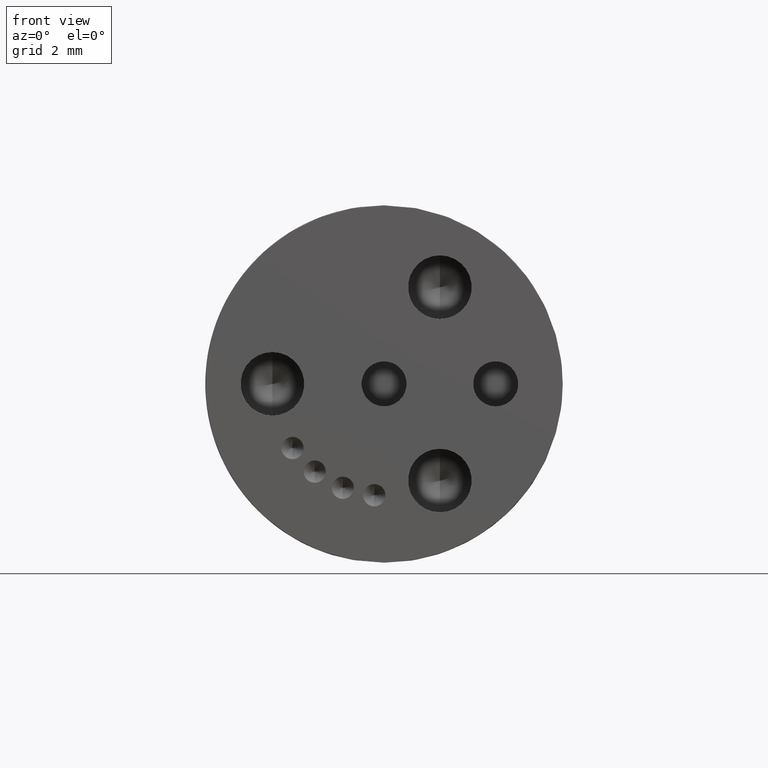
[diagram: clean part render]
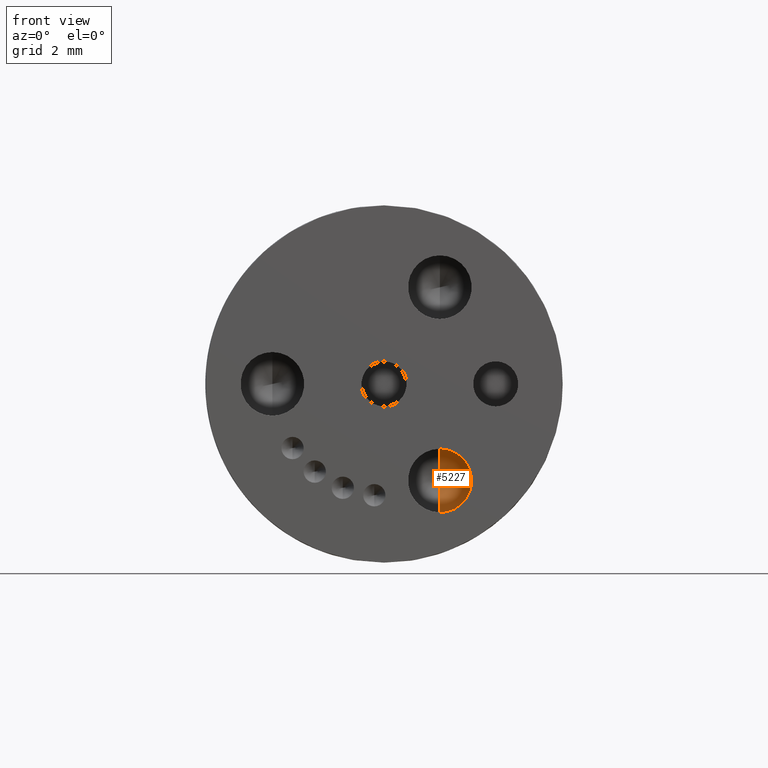
[diagram: same view with one face highlighted and labeled with its STEP entity id]
A machine part, front view. The second image highlights one B-rep face of the part: STEP entity #5227.
In plain terms, the highlighted conical surface has half-angle 59 deg.
Its self-contained STEP definition (entity closure, byte-faithful):
#211 = LINE ( 'NONE', #5860, #3742 ) ;
#316 = CARTESIAN_POINT ( 'NONE',  ( 0.07050441801255991100, -0.2358196174343081800, -0.1653074996940764900 ) ) ;
#320 = DIRECTION ( 'NONE',  ( 1.049727191138618300E-016, -0.5150380749100547100, 0.8571673007021120000 ) ) ;
#333 = DIRECTION ( 'NONE',  ( -0.0000000000000000000, -1.000000000000000000, -0.0000000000000000000 ) ) ;
#472 = CONICAL_SURFACE ( 'NONE', #2832, 0.04449999999999996300, 1.029744258676653900 ) ;
#501 = LINE ( 'NONE', #2924, #1448 ) ;
#521 = VERTEX_POINT ( 'NONE', #5664 ) ;
#609 = EDGE_LOOP ( 'NONE', ( #1902, #3531, #1134 ) ) ;
#1001 = EDGE_CURVE ( 'NONE', #3763, #2012, #501, .T. ) ;
#1134 = ORIENTED_EDGE ( 'NONE', *, *, #3291, .T. ) ;
#1387 = CARTESIAN_POINT ( 'NONE',  ( 0.07050441801255991100, -0.2358196174343081800, -0.1653074996940764900 ) ) ;
#1448 = VECTOR ( 'NONE', #3410, 39.37007874015748100 ) ;
#1598 = CARTESIAN_POINT ( 'NONE',  ( 0.07050441801255985500, -0.2090813198875817500, -0.1653074996940764900 ) ) ;
#1851 = DIRECTION ( 'NONE',  ( 0.0000000000000000000, 0.0000000000000000000, -1.000000000000000000 ) ) ;
#1902 = ORIENTED_EDGE ( 'NONE', *, *, #5549, .F. ) ;
#2012 = VERTEX_POINT ( 'NONE', #2749 ) ;
#2014 = FACE_OUTER_BOUND ( 'NONE', #609, .T. ) ;
#2749 = CARTESIAN_POINT ( 'NONE',  ( 0.07050441801255991100, -0.2358196174343081800, -0.2098074996940764400 ) ) ;
#2832 = AXIS2_PLACEMENT_3D ( 'NONE', #316, #333, #3985 ) ;
#2924 = CARTESIAN_POINT ( 'NONE',  ( 0.07050441801255991100, -0.2358196174343081800, -0.2098074996940764400 ) ) ;
#3291 = EDGE_CURVE ( 'NONE', #2012, #521, #3820, .T. ) ;
#3410 = DIRECTION ( 'NONE',  ( 0.0000000000000000000, -0.5150380749100547100, -0.8571673007021120000 ) ) ;
#3531 = ORIENTED_EDGE ( 'NONE', *, *, #1001, .T. ) ;
#3742 = VECTOR ( 'NONE', #320, 39.37007874015748100 ) ;
#3763 = VERTEX_POINT ( 'NONE', #1598 ) ;
#3820 = CIRCLE ( 'NONE', #4429, 0.04449999999999996300 ) ;
#3985 = DIRECTION ( 'NONE',  ( 0.0000000000000000000, 0.0000000000000000000, -1.000000000000000000 ) ) ;
#4429 = AXIS2_PLACEMENT_3D ( 'NONE', #1387, #4616, #1851 ) ;
#4616 = DIRECTION ( 'NONE',  ( -0.0000000000000000000, -1.000000000000000000, -0.0000000000000000000 ) ) ;
#5227 = ADVANCED_FACE ( 'NONE', ( #2014 ), #472, .F. ) ;
#5549 = EDGE_CURVE ( 'NONE', #3763, #521, #211, .T. ) ;
#5664 = CARTESIAN_POINT ( 'NONE',  ( 0.07050441801255991100, -0.2358196174343081800, -0.1208074996940765200 ) ) ;
#5860 = CARTESIAN_POINT ( 'NONE',  ( 0.07050441801255991100, -0.2358196174343081800, -0.1208074996940765200 ) ) ;